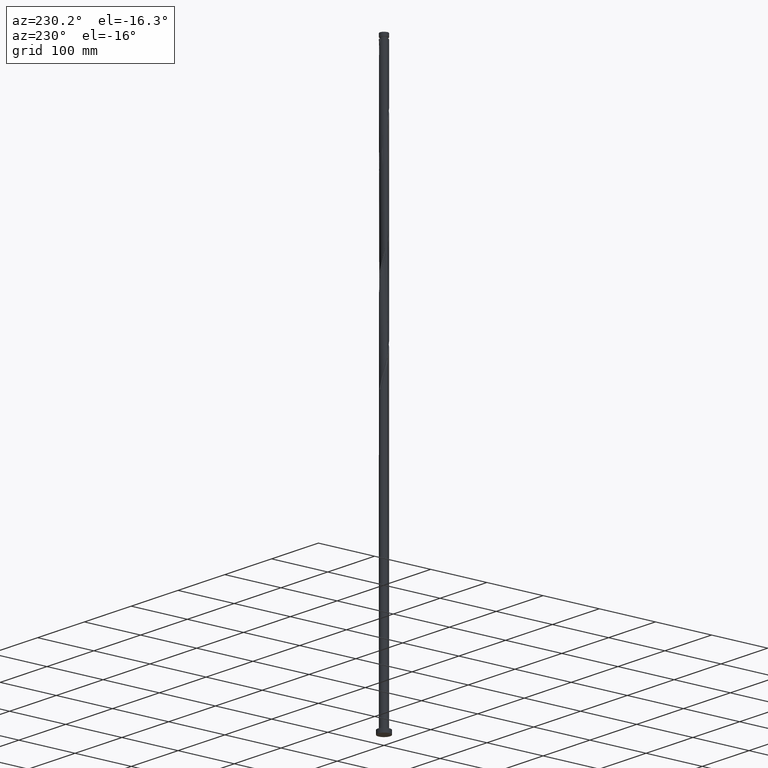
[diagram: clean part render]
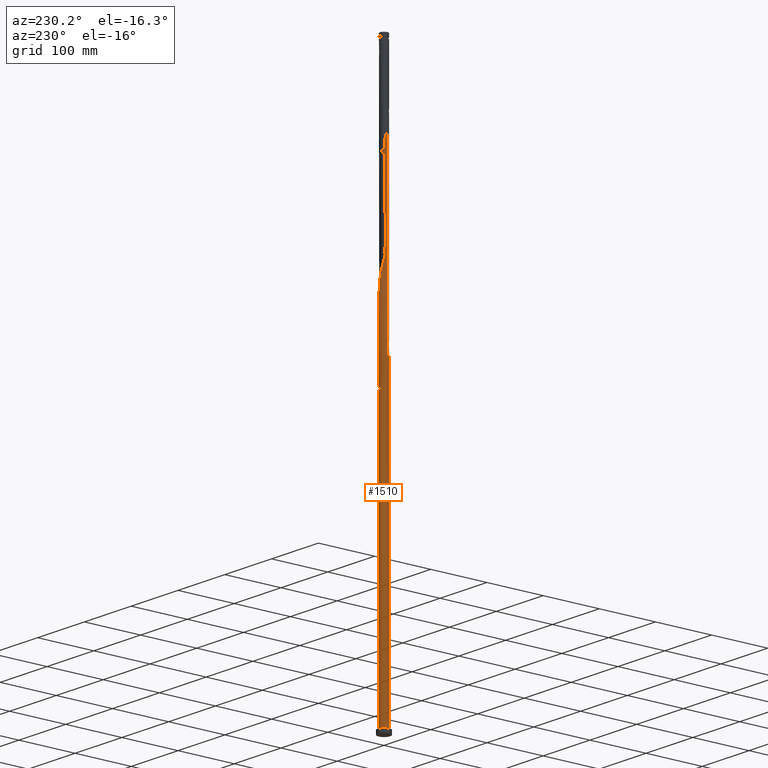
[diagram: same view with one face highlighted and labeled with its STEP entity id]
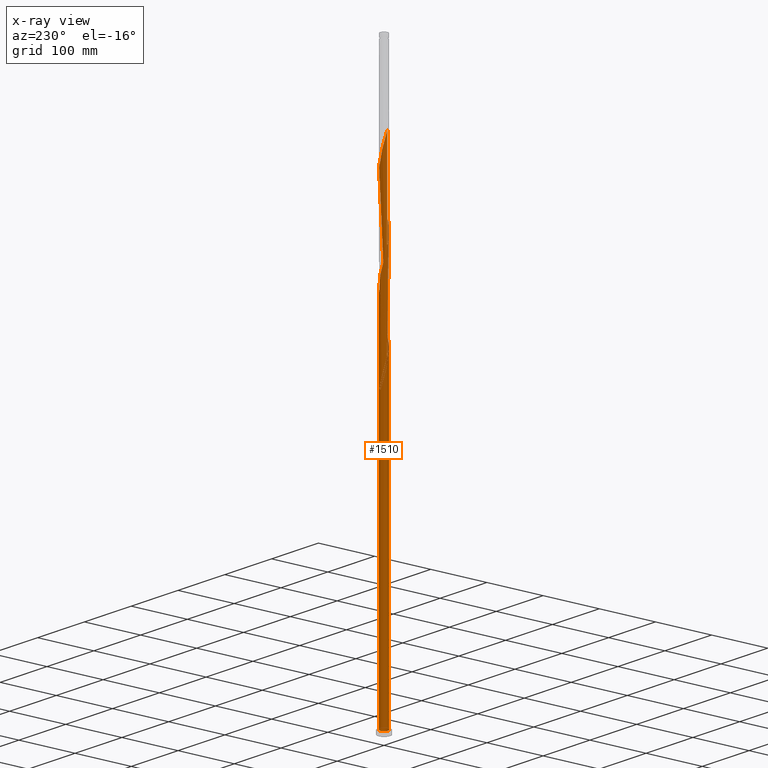
[diagram: x-ray of the same camera — body ghosted, the highlighted face saturated]
A machine part, auxiliary view. The second image highlights one B-rep face of the part: STEP entity #1510.
The next image is the same camera in x-ray: the body ghosted, the highlighted face saturated — about 0% of this face is hidden behind the body in this view.
In plain terms, the highlighted cylindrical surface (bore or boss wall) has radius 7 mm, axis along (-0, -0, -1).
Its self-contained STEP definition (entity closure, byte-faithful):
#15 = AXIS2_PLACEMENT_3D ( 'NONE', #1799, #1085, #2005 ) ;
#29 = ORIENTED_EDGE ( 'NONE', *, *, #803, .F. ) ;
#42 = CARTESIAN_POINT ( 'NONE',  ( 3.444661581381044169, -6.093792463627032419, 749.4754418615292479 ) ) ;
#53 = CARTESIAN_POINT ( 'NONE',  ( -5.835739828502652493, 3.865765209376793354, 678.6421085281959904 ) ) ;
#66 = CARTESIAN_POINT ( 'NONE',  ( -0.7950515814432402850, -6.954702939942493778, 732.8087751948629602 ) ) ;
#74 = DIRECTION ( 'NONE',  ( -0.000000000000000000, -0.000000000000000000, -1.000000000000000000 ) ) ;
#78 = CARTESIAN_POINT ( 'NONE',  ( -1.342398573274906193, -6.892131023469297624, 730.7254418615291343 ) ) ;
#81 = CARTESIAN_POINT ( 'NONE',  ( -2.965069713458600820, 6.364893209514908001, 497.3921085281959336 ) ) ;
#91 = CARTESIAN_POINT ( 'NONE',  ( -5.159153274858741867, 4.731082062965561441, 507.8087751948625623 ) ) ;
#106 = CARTESIAN_POINT ( 'NONE',  ( 2.404038248898769048, 6.597280051053632022, 643.2254418615292479 ) ) ;
#111 = CARTESIAN_POINT ( 'NONE',  ( -1.342398573274902196, 6.892131023469287854, 501.5587751948625623 ) ) ;
#120 = CARTESIAN_POINT ( 'NONE',  ( -2.404038248898770824, -6.597280051053632022, 559.8921085281961041 ) ) ;
#131 = CARTESIAN_POINT ( 'NONE',  ( 6.744705537261463490, -1.873218411086838620, 603.6421085281961041 ) ) ;
#136 = VERTEX_POINT ( 'NONE', #1682 ) ;
#144 = CARTESIAN_POINT ( 'NONE',  ( 6.093792463627032419, 3.444661581381044169, 624.4754418615292479 ) ) ;
#148 = DIRECTION ( 'NONE',  ( 1.000000000000000000, 0.000000000000000000, 0.000000000000000000 ) ) ;
#196 = CARTESIAN_POINT ( 'NONE',  ( -7.000000000000011546, -8.910909435268075030E-15, 527.4954969894147325 ) ) ;
#206 = CIRCLE ( 'NONE', #15, 7.000000000000000000 ) ;
#215 = EDGE_CURVE ( 'NONE', #136, #325, #206, .T. ) ;
#220 = CARTESIAN_POINT ( 'NONE',  ( -0.2477045896115740997, -7.017274856415688156, 734.8921085281959904 ) ) ;
#230 = CARTESIAN_POINT ( 'NONE',  ( 6.954702939942493778, -0.7950515814432402850, 774.4754418615292479 ) ) ;
#233 = CARTESIAN_POINT ( 'NONE',  ( -1.932876120766163330, 6.750369906602925241, 493.2254418615293616 ) ) ;
#240 = CIRCLE ( 'NONE', #2186, 7.000000000000000000 ) ;
#241 = CARTESIAN_POINT ( 'NONE',  ( 4.325047894464357334, 5.531497508341470137, 801.5587751948627329 ) ) ;
#252 = CARTESIAN_POINT ( 'NONE',  ( -4.325047894464358222, -5.531497508341469249, 718.2254418615293616 ) ) ;
#264 = CARTESIAN_POINT ( 'NONE',  ( 6.364893209514911554, 2.965069713458597267, 789.0587751948623918 ) ) ;
#272 = CARTESIAN_POINT ( 'NONE',  ( 4.325047894464357334, 5.531497508341470137, 634.8921085281959904 ) ) ;
#278 = CARTESIAN_POINT ( 'NONE',  ( -3.865765209376786249, 5.835739828502643611, 511.9754418615290774 ) ) ;
#283 = CARTESIAN_POINT ( 'NONE',  ( 2.905260386594000543, 6.368631099858730771, 641.1421085281959904 ) ) ;
#284 = CARTESIAN_POINT ( 'NONE',  ( -1.392982411949278410, 6.860000000000009202, 824.4754418615295890 ) ) ;
#295 = CARTESIAN_POINT ( 'NONE',  ( -2.965069713458600820, 6.364893209514908001, 830.7254418615292479 ) ) ;
#306 = CARTESIAN_POINT ( 'NONE',  ( -6.557631558058917953, -2.448972917112382408, 536.9754418615293616 ) ) ;
#311 = ORIENTED_EDGE ( 'NONE', *, *, #773, .F. ) ;
#317 = CARTESIAN_POINT ( 'NONE',  ( 6.860000000000009202, 1.392982411949278854, 616.1421085281961041 ) ) ;
#318 = CARTESIAN_POINT ( 'NONE',  ( -4.786809041376016260, 5.137116231466765548, 839.0587751948627329 ) ) ;
#322 = CARTESIAN_POINT ( 'NONE',  ( 0.8530887031323963754, 6.969630093397080728, 493.2254418615293616 ) ) ;
#325 = VERTEX_POINT ( 'NONE', #1844 ) ;
#331 = CARTESIAN_POINT ( 'NONE',  ( -0.8530887031323919345, 6.969630093397093162, 655.7254418615292479 ) ) ;
#342 = CARTESIAN_POINT ( 'NONE',  ( -6.999999999999999112, -8.657164945486632062E-15, 538.1220534003106195 ) ) ;
#365 = CARTESIAN_POINT ( 'NONE',  ( -6.859999999999999432, 1.392982411949279076, 532.8087751948627329 ) ) ;
#387 = EDGE_CURVE ( 'NONE', #1816, #1408, #979, .T. ) ;
#395 = CARTESIAN_POINT ( 'NONE',  ( -6.993452474906391991, -0.3026920567604114432, 695.3087751948625055 ) ) ;
#396 = ORIENTED_EDGE ( 'NONE', *, *, #667, .F. ) ;
#406 = CARTESIAN_POINT ( 'NONE',  ( -6.969630093397091386, -0.8530887031323962644, 697.3921085281961041 ) ) ;
#410 = CARTESIAN_POINT ( 'NONE',  ( -5.835739828502652493, 3.865765209376793354, 511.9754418615293048 ) ) ;
#421 = CARTESIAN_POINT ( 'NONE',  ( -6.750369906602926129, -1.932876120766162442, 701.5587751948625055 ) ) ;
#432 = CARTESIAN_POINT ( 'NONE',  ( -6.860000000000009202, -1.392982411949279520, 699.4754418615293616 ) ) ;
#441 = CARTESIAN_POINT ( 'NONE',  ( 0.8530887031323959313, -6.969630093397091386, 739.0587751948626192 ) ) ;
#445 = CARTESIAN_POINT ( 'NONE',  ( -5.137116231466755778, 4.786809041376008267, 518.2254418615292479 ) ) ;
#449 = CARTESIAN_POINT ( 'NONE',  ( 4.731082062965563217, 5.159153274858740090, 632.8087751948626192 ) ) ;
#452 = VECTOR ( 'NONE', #921, 1000.000000000000000 ) ;
#461 = CARTESIAN_POINT ( 'NONE',  ( -5.822691717739151507, -3.924253449303487518, 543.2254418615293616 ) ) ;
#473 = CARTESIAN_POINT ( 'NONE',  ( 5.159153274858740978, -4.731082062965561441, 591.1421085281958767 ) ) ;
#483 = CARTESIAN_POINT ( 'NONE',  ( 5.531497508341469249, -4.325047894464359111, 593.2254418615292479 ) ) ;
#492 = CARTESIAN_POINT ( 'NONE',  ( 1.392982411949279298, -6.860000000000009202, 574.4754418615292479 ) ) ;
#493 = CARTESIAN_POINT ( 'NONE',  ( 3.406482524289233371, 6.139982148663830408, 805.7254418615292479 ) ) ;
#497 = CARTESIAN_POINT ( 'NONE',  ( -0.2477045896115717960, 7.017274856415677498, 497.3921085281958767 ) ) ;
#504 = CARTESIAN_POINT ( 'NONE',  ( -4.786809041376016260, 5.137116231466765548, 672.3921085281958767 ) ) ;
#516 = CARTESIAN_POINT ( 'NONE',  ( -6.597280051053632022, 2.404038248898770824, 518.2254418615292479 ) ) ;
#517 = DIRECTION ( 'NONE',  ( 0.000000000000000000, 0.000000000000000000, 1.000000000000000000 ) ) ;
#522 = ORIENTED_EDGE ( 'NONE', *, *, #387, .T. ) ;
#540 = CARTESIAN_POINT ( 'NONE',  ( -7.000000000000011546, -8.910909435268075030E-15, 527.4954969894147325 ) ) ;
#564 = CARTESIAN_POINT ( 'NONE',  ( -5.531497508341469249, 4.325047894464358222, 676.5587751948625055 ) ) ;
#565 = VERTEX_POINT ( 'NONE', #2036 ) ;
#575 = CARTESIAN_POINT ( 'NONE',  ( 6.892131023469296736, -1.342398573274909968, 772.3921085281961041 ) ) ;
#587 = CARTESIAN_POINT ( 'NONE',  ( -6.744705537261463490, 1.873218411086837509, 686.9754418615293616 ) ) ;
#591 = CARTESIAN_POINT ( 'NONE',  ( -6.093792463627019096, 3.444661581381040172, 524.4754418615291343 ) ) ;
#602 = CARTESIAN_POINT ( 'NONE',  ( -7.017274856415688156, 0.2477045896115736556, 693.2254418615293616 ) ) ;
#613 = CARTESIAN_POINT ( 'NONE',  ( 6.750369906602925241, 1.932876120766165329, 784.8921085281957630 ) ) ;
#616 = CARTESIAN_POINT ( 'NONE',  ( -4.786809041376016260, 5.137116231466765548, 505.7254418615293616 ) ) ;
#621 = CARTESIAN_POINT ( 'NONE',  ( 5.479903974602959416, 4.355531245339751223, 628.6421085281959904 ) ) ;
#624 = CARTESIAN_POINT ( 'NONE',  ( -6.139982148663833073, 3.406482524289229374, 847.3921085281958767 ) ) ;
#632 = CARTESIAN_POINT ( 'NONE',  ( 7.017274856415689044, -0.2477045896115713242, 609.8921085281958767 ) ) ;
#636 = CARTESIAN_POINT ( 'NONE',  ( 3.865765209376795575, 5.835739828502651605, 803.6421085281961041 ) ) ;
#645 = CARTESIAN_POINT ( 'NONE',  ( -0.7950515814432402850, -6.954702939942493778, 566.1421085281958767 ) ) ;
#649 = ORIENTED_EDGE ( 'NONE', *, *, #387, .F. ) ;
#656 = CARTESIAN_POINT ( 'NONE',  ( -6.364893209514909778, -2.965069713458600820, 539.0587751948626192 ) ) ;
#657 = CARTESIAN_POINT ( 'NONE',  ( -3.924253449303489294, 5.822691717739151507, 834.8921085281961041 ) ) ;
#661 = CARTESIAN_POINT ( 'NONE',  ( 1.392982411949280852, 6.859999999999997655, 491.1421085281959336 ) ) ;
#667 = EDGE_CURVE ( 'NONE', #1816, #1256, #1084, .T. ) ;
#670 = CARTESIAN_POINT ( 'NONE',  ( 0.8530887031323959313, -6.969630093397091386, 572.3921085281961041 ) ) ;
#681 = CARTESIAN_POINT ( 'NONE',  ( -2.448972917112383296, 6.557631558058917953, 661.9754418615294753 ) ) ;
#696 = CARTESIAN_POINT ( 'NONE',  ( 0.000000000000000000, 0.000000000000000000, 7.000000000000000000 ) ) ;
#731 = CARTESIAN_POINT ( 'NONE',  ( -6.557631558058906407, 2.448972917112379744, 528.6421085281958767 ) ) ;
#737 = CARTESIAN_POINT ( 'NONE',  ( -1.392982411949278188, 6.860000000000009202, 491.1421085281959336 ) ) ;
#745 = CARTESIAN_POINT ( 'NONE',  ( 0.3026920567604110546, -6.993452474906390215, 736.9754418615293616 ) ) ;
#758 = CARTESIAN_POINT ( 'NONE',  ( 3.924253449303487518, -5.822691717739153283, 751.5587751948623918 ) ) ;
#770 = CARTESIAN_POINT ( 'NONE',  ( 6.557631558058917953, 2.448972917112381520, 786.9754418615294753 ) ) ;
#773 = EDGE_CURVE ( 'NONE', #136, #1816, #830, .T. ) ;
#782 = CARTESIAN_POINT ( 'NONE',  ( 6.597280051053632022, -2.404038248898768160, 768.2254418615292479 ) ) ;
#786 = CARTESIAN_POINT ( 'NONE',  ( -5.479903974602947869, 4.355531245339746782, 520.3087751948626192 ) ) ;
#803 = EDGE_CURVE ( 'NONE', #1044, #325, #923, .T. ) ;
#807 = CARTESIAN_POINT ( 'NONE',  ( -5.835739828502652493, 3.865765209376793354, 845.3087751948627329 ) ) ;
#815 = CARTESIAN_POINT ( 'NONE',  ( 2.965069713458600376, -6.364893209514909778, 580.7254418615292479 ) ) ;
#824 = CARTESIAN_POINT ( 'NONE',  ( 1.873218411086839286, 6.744705537261463490, 645.3087751948626192 ) ) ;
#825 = CARTESIAN_POINT ( 'NONE',  ( 0.7950515814432411732, 6.954702939942493778, 816.1421085281959904 ) ) ;
#830 =( BOUNDED_CURVE ( )  B_SPLINE_CURVE ( 2, ( #737, #233, #1695, #81, #1882, #1483, #2239, #616, #91, #2250, #410, #1129, #1662, #516, #2004, #1966, #1582, #1798, #540 ),
 .UNSPECIFIED., .F., .T. ) 
 B_SPLINE_CURVE_WITH_KNOTS ( ( 3, 2, 2, 2, 2, 2, 2, 2, 2, 3 ),
 ( 0.000000000000000000, 0.006249999999999976928, 0.01249999999999995386, 0.01875000000000004441, 0.02500000000000002220, 0.03125000000000000000, 0.03749999999999997780, 0.04374999999999995559, 0.05000000000000004441, 0.05452835374107325300 ),
 .UNSPECIFIED. ) 
 CURVE ( )  GEOMETRIC_REPRESENTATION_ITEM ( )  RATIONAL_B_SPLINE_CURVE ( ( 0.9090909090909780055, 0.9062884852120033363, 0.9090909090909780055, 0.9062884852120033363, 0.9090909090909780055, 0.9062884852120033363, 0.9090909090909780055, 0.9062884852120033363, 0.9090909090909780055, 0.9062884852120033363, 0.9090909090909780055, 0.9062884852120033363, 0.9090909090909780055, 0.9062884852120033363, 0.9090909090909780055, 0.9062884852120033363, 0.9090909090909780055, 0.9070604504259495160, 0.9079722749903214041 ) ) 
 REPRESENTATION_ITEM ( '' )  );
#833 = CYLINDRICAL_SURFACE ( 'NONE', #1170, 7.000000000000000000 ) ;
#840 = CARTESIAN_POINT ( 'NONE',  ( -0.2477045896115740997, -7.017274856415688156, 568.2254418615293616 ) ) ;
#852 = CARTESIAN_POINT ( 'NONE',  ( 6.954702939942493778, -0.7950515814432402850, 607.8087751948626192 ) ) ;
#853 = CARTESIAN_POINT ( 'NONE',  ( 1.873218411086839286, 6.744705537261463490, 811.9754418615292479 ) ) ;
#863 = CARTESIAN_POINT ( 'NONE',  ( 0.2477045896115715462, 7.017274856415689044, 651.5587751948628465 ) ) ;
#888 = CARTESIAN_POINT ( 'NONE',  ( -6.993452474906378669, 0.3026920567604127754, 536.9754418615294753 ) ) ;
#903 = ORIENTED_EDGE ( 'NONE', *, *, #1887, .T. ) ;
#910 = CARTESIAN_POINT ( 'NONE',  ( -6.750369906602915471, 1.932876120766161554, 530.7254418615292479 ) ) ;
#921 = DIRECTION ( 'NONE',  ( -0.000000000000000000, -0.000000000000000000, -1.000000000000000000 ) ) ;
#923 =( BOUNDED_CURVE ( )  B_SPLINE_CURVE ( 2, ( #342, #2335, #888, #1990, #365, #910, #731, #1873, #591, #1348, #786, #445, #1885, #1898, #278, #996, #1056, #1005, #2303, #111, #1371, #497, #1947, #322, #661 ),
 .UNSPECIFIED., .F., .T. ) 
 B_SPLINE_CURVE_WITH_KNOTS ( ( 3, 2, 2, 2, 2, 2, 2, 2, 2, 2, 2, 2, 3 ),
 ( 0.9295283537410735653, 0.9312500000000000222, 0.9375000000000000000, 0.9437499999999999778, 0.9499999999999999556, 0.9562500000000000444, 0.9625000000000000222, 0.9687500000000000000, 0.9749999999999999778, 0.9812499999999999556, 0.9875000000000000444, 0.9937500000000000222, 1.000000000000000000 ),
 .UNSPECIFIED. ) 
 CURVE ( )  GEOMETRIC_REPRESENTATION_ITEM ( )  RATIONAL_B_SPLINE_CURVE ( ( 0.9079722749903154089, 0.9083189438770258306, 0.9090909090909720103, 0.9062884852119970081, 0.9090909090909720103, 0.9062884852119970081, 0.9090909090909720103, 0.9062884852119970081, 0.9090909090909720103, 0.9062884852119970081, 0.9090909090909720103, 0.9062884852119970081, 0.9090909090909720103, 0.9062884852119970081, 0.9090909090909720103, 0.9062884852119970081, 0.9090909090909720103, 0.9062884852119970081, 0.9090909090909720103, 0.9062884852119970081, 0.9090909090909720103, 0.9062884852119970081, 0.9090909090909720103, 0.9062884852119970081, 0.9090909090909720103 ) ) 
 REPRESENTATION_ITEM ( '' )  );
#936 = CARTESIAN_POINT ( 'NONE',  ( -6.364893209514909778, -2.965069713458600820, 705.7254418615293616 ) ) ;
#949 = CARTESIAN_POINT ( 'NONE',  ( -6.139982148663833073, 3.406482524289229374, 680.7254418615293616 ) ) ;
#959 = CARTESIAN_POINT ( 'NONE',  ( 4.786809041376015372, -5.137116231466765548, 755.7254418615293616 ) ) ;
#979 = LINE ( 'NONE', #1678, #1366 ) ;
#981 = CARTESIAN_POINT ( 'NONE',  ( -6.557631558058917953, -2.448972917112382408, 703.6421085281962178 ) ) ;
#989 = CARTESIAN_POINT ( 'NONE',  ( 3.865765209376795575, 5.835739828502651605, 636.9754418615293616 ) ) ;
#992 = CARTESIAN_POINT ( 'NONE',  ( -3.444661581381044613, 6.093792463627030642, 832.8087751948627329 ) ) ;
#996 = CARTESIAN_POINT ( 'NONE',  ( -3.406482524289222269, 6.139982148663825079, 509.8921085281959904 ) ) ;
#1001 = CARTESIAN_POINT ( 'NONE',  ( 0.3026920567604110546, -6.993452474906390215, 570.3087751948625055 ) ) ;
#1005 = CARTESIAN_POINT ( 'NONE',  ( -2.404038248898764607, 6.597280051053624028, 505.7254418615293616 ) ) ;
#1012 = CARTESIAN_POINT ( 'NONE',  ( -7.000000000000011546, -8.910909435268075030E-15, 527.4954969894147325 ) ) ;
#1014 = CARTESIAN_POINT ( 'NONE',  ( -6.597280051053632022, 2.404038248898770824, 851.5587751948626192 ) ) ;
#1025 = CARTESIAN_POINT ( 'NONE',  ( 6.368631099858730771, -2.905260386594000099, 599.4754418615293616 ) ) ;
#1038 = CARTESIAN_POINT ( 'NONE',  ( 6.750369906602925241, 1.932876120766165329, 618.2254418615292479 ) ) ;
#1039 = CARTESIAN_POINT ( 'NONE',  ( -5.531497508341469249, 4.325047894464358222, 843.2254418615291343 ) ) ;
#1044 = VERTEX_POINT ( 'NONE', #2003 ) ;
#1051 = CARTESIAN_POINT ( 'NONE',  ( -2.965069713458600820, 6.364893209514908001, 664.0587751948625055 ) ) ;
#1056 = CARTESIAN_POINT ( 'NONE',  ( -2.905260386593994326, 6.368631099858721889, 507.8087751948625623 ) ) ;
#1078 = ORIENTED_EDGE ( 'NONE', *, *, #215, .T. ) ;
#1084 =( BOUNDED_CURVE ( )  B_SPLINE_CURVE ( 2, ( #1012, #1929, #1219, #1196, #2287, #1942, #306, #656, #1737, #461, #2069, #2090, #2112, #1172, #1726, #2080, #1891, #120, #1713, #2099, #645, #840, #1001, #670, #492, #1210, #1915, #815, #1554, #1531, #1748, #2255, #473, #483, #1390, #2276, #1025, #1376, #131, #2246, #852, #632, #1567, #1353, #317, #1038, #1342, #1759, #144, #1523, #621, #1542, #449, #272, #989, #1904, #283, #106, #824, #2265, #1364, #863, #1581, #331, #1772, #1954, #681, #1051, #2299, #1403, #2123, #504, #1231, #564, #53, #949, #2061, #1115, #587, #1287, #2017, #602, #395, #406, #432, #421, #981, #936, #2214, #1681, #2225, #1161, #1847, #252, #1869, #1311, #2190, #1335, #1837, #78, #66, #220, #745, #441, #1658, #2050, #1480, #1704, #42, #758, #1469, #959, #1126, #1322, #1299, #2201, #1670, #782, #1515, #575, #230, #2236, #1879, #1138, #1504, #613, #770, #264, #1493, #2027, #2040, #1859, #1150, #241, #636, #493, #1186, #1906, #853, #1916, #825, #1367, #1220, #2071, #284, #2082, #1175, #295, #992, #657, #1543, #318, #1715, #1039, #807, #624, #1197, #1014, #1894, #2266, #1534, #2257, #1555 ),
 .UNSPECIFIED., .F., .T. ) 
 B_SPLINE_CURVE_WITH_KNOTS ( ( 3, 2, 2, 2, 2, 2, 2, 2, 2, 2, 2, 2, 2, 2, 2, 2, 2, 2, 2, 2, 2, 2, 2, 2, 2, 2, 2, 2, 2, 2, 2, 2, 2, 2, 2, 2, 2, 2, 2, 2, 2, 2, 2, 2, 2, 2, 2, 2, 2, 2, 2, 2, 2, 2, 2, 2, 2, 2, 2, 2, 2, 2, 2, 2, 2, 2, 2, 2, 2, 2, 2, 2, 2, 2, 2, 2, 2, 2, 2, 2, 2, 3 ),
 ( 0.05452835374107325300, 0.05625000000000002220, 0.06250000000000000000, 0.06874999999999997780, 0.07499999999999995559, 0.08125000000000004441, 0.08750000000000002220, 0.09375000000000000000, 0.09999999999999997780, 0.1062499999999999556, 0.1125000000000000444, 0.1187500000000000222, 0.1250000000000000000, 0.1312499999999999778, 0.1374999999999999556, 0.1437500000000000444, 0.1500000000000000222, 0.1562500000000000000, 0.1624999999999999778, 0.1687499999999999556, 0.1750000000000000444, 0.1812500000000000222, 0.1875000000000000000, 0.1937499999999999778, 0.1999999999999999556, 0.2062500000000000444, 0.2125000000000000222, 0.2187500000000000000, 0.2249999999999999778, 0.2312499999999999556, 0.2375000000000000444, 0.2437500000000000222, 0.2500000000000000000, 0.2562499999999999778, 0.2624999999999999556, 0.2687500000000000444, 0.2750000000000000222, 0.2812500000000000000, 0.2874999999999999778, 0.2937499999999999556, 0.3000000000000000444, 0.3062500000000000222, 0.3125000000000000000, 0.3187499999999999778, 0.3249999999999999556, 0.3312500000000000444, 0.3375000000000000222, 0.3437500000000000000, 0.3499999999999999778, 0.3562499999999999556, 0.3625000000000000444, 0.3687500000000000222, 0.3750000000000000000, 0.3812499999999999778, 0.3874999999999999556, 0.3937500000000000444, 0.4000000000000000222, 0.4062500000000000000, 0.4124999999999999778, 0.4187499999999999556, 0.4250000000000000444, 0.4312500000000000222, 0.4375000000000000000, 0.4437499999999999778, 0.4499999999999999556, 0.4562500000000000444, 0.4625000000000000222, 0.4687500000000000000, 0.4749999999999999778, 0.4812499999999999556, 0.4875000000000000444, 0.4937500000000000222, 0.5000000000000000000, 0.5062499999999999778, 0.5124999999999999556, 0.5187500000000000444, 0.5250000000000000222, 0.5312500000000000000, 0.5374999999999999778, 0.5437499999999999556, 0.5500000000000000444, 0.5545283537410735653 ),
 .UNSPECIFIED. ) 
 CURVE ( )  GEOMETRIC_REPRESENTATION_ITEM ( )  RATIONAL_B_SPLINE_CURVE ( ( 0.9079722749903214041, 0.9083189438770318258, 0.9090909090909780055, 0.9062884852120033363, 0.9090909090909780055, 0.9062884852120033363, 0.9090909090909780055, 0.9062884852120033363, 0.9090909090909780055, 0.9062884852120033363, 0.9090909090909780055, 0.9062884852120033363, 0.9090909090909780055, 0.9062884852120033363, 0.9090909090909780055, 0.9062884852120033363, 0.9090909090909780055, 0.9062884852120033363, 0.9090909090909780055, 0.9062884852120033363, 0.9090909090909780055, 0.9062884852120033363, 0.9090909090909780055, 0.9062884852120033363, 0.9090909090909780055, 0.9062884852120033363, 0.9090909090909780055, 0.9062884852120033363, 0.9090909090909780055, 0.9062884852120033363, 0.9090909090909780055, 0.9062884852120033363, 0.9090909090909780055, 0.9062884852120033363, 0.9090909090909780055, 0.9062884852120033363, 0.9090909090909780055, 0.9062884852120033363, 0.9090909090909780055, 0.9062884852120033363, 0.9090909090909780055, 0.9062884852120033363, 0.9090909090909780055, 0.9062884852120033363, 0.9090909090909780055, 0.9062884852120033363, 0.9090909090909780055, 0.9062884852120033363, 0.9090909090909780055, 0.9062884852120033363, 0.9090909090909780055, 0.9062884852120033363, 0.9090909090909780055, 0.9062884852120033363, 0.9090909090909780055, 0.9062884852120033363, 0.9090909090909780055, 0.9062884852120033363, 0.9090909090909780055, 0.9062884852120033363, 0.9090909090909780055, 0.9062884852120033363, 0.9090909090909780055, 0.9062884852120033363, 0.9090909090909780055, 0.9062884852120033363, 0.9090909090909780055, 0.9062884852120033363, 0.9090909090909780055, 0.9062884852120033363, 0.9090909090909780055, 0.9062884852120033363, 0.9090909090909780055, 0.9062884852120033363, 0.9090909090909780055, 0.9062884852120033363, 0.9090909090909780055, 0.9062884852120033363, 0.9090909090909780055, 0.9062884852120033363, 0.9090909090909780055, 0.9062884852120033363, 0.9090909090909780055, 0.9062884852120033363, 0.9090909090909780055, 0.9062884852120033363, 0.9090909090909780055, 0.9062884852120033363, 0.9090909090909780055, 0.9062884852120033363, 0.9090909090909780055, 0.9062884852120033363, 0.9090909090909780055, 0.9062884852120033363, 0.9090909090909780055, 0.9062884852120033363, 0.9090909090909780055, 0.9062884852120033363, 0.9090909090909780055, 0.9062884852120033363, 0.9090909090909780055, 0.9062884852120033363, 0.9090909090909780055, 0.9062884852120033363, 0.9090909090909780055, 0.9062884852120033363, 0.9090909090909780055, 0.9062884852120033363, 0.9090909090909780055, 0.9062884852120033363, 0.9090909090909780055, 0.9062884852120033363, 0.9090909090909780055, 0.9062884852120033363, 0.9090909090909780055, 0.9062884852120033363, 0.9090909090909780055, 0.9062884852120033363, 0.9090909090909780055, 0.9062884852120033363, 0.9090909090909780055, 0.9062884852120033363, 0.9090909090909780055, 0.9062884852120033363, 0.9090909090909780055, 0.9062884852120033363, 0.9090909090909780055, 0.9062884852120033363, 0.9090909090909780055, 0.9062884852120033363, 0.9090909090909780055, 0.9062884852120033363, 0.9090909090909780055, 0.9062884852120033363, 0.9090909090909780055, 0.9062884852120033363, 0.9090909090909780055, 0.9062884852120033363, 0.9090909090909780055, 0.9062884852120033363, 0.9090909090909780055, 0.9062884852120033363, 0.9090909090909780055, 0.9062884852120033363, 0.9090909090909780055, 0.9062884852120033363, 0.9090909090909780055, 0.9062884852120033363, 0.9090909090909780055, 0.9062884852120033363, 0.9090909090909780055, 0.9062884852120033363, 0.9090909090909780055, 0.9062884852120033363, 0.9090909090909780055, 0.9062884852120033363, 0.9090909090909780055, 0.9062884852120033363, 0.9090909090909780055, 0.9062884852120033363, 0.9090909090909780055, 0.9070604504259494050, 0.9079722749903216261 ) ) 
 REPRESENTATION_ITEM ( '' )  );
#1085 = DIRECTION ( 'NONE',  ( 0.000000000000000000, -0.000000000000000000, -1.000000000000000000 ) ) ;
#1101 = DIRECTION ( 'NONE',  ( 1.000000000000000000, 0.000000000000000000, 0.000000000000000000 ) ) ;
#1115 = CARTESIAN_POINT ( 'NONE',  ( -6.597280051053632022, 2.404038248898770824, 684.8921085281956493 ) ) ;
#1126 = CARTESIAN_POINT ( 'NONE',  ( 5.159153274858740978, -4.731082062965561441, 757.8087751948626192 ) ) ;
#1129 = CARTESIAN_POINT ( 'NONE',  ( -6.139982148663833073, 3.406482524289229374, 514.0587751948628465 ) ) ;
#1138 = CARTESIAN_POINT ( 'NONE',  ( 6.969630093397093162, 0.8530887031323923786, 780.7254418615293616 ) ) ;
#1150 = CARTESIAN_POINT ( 'NONE',  ( 4.731082062965563217, 5.159153274858740090, 799.4754418615293616 ) ) ;
#1161 = CARTESIAN_POINT ( 'NONE',  ( -5.137116231466765548, -4.786809041376016260, 714.0587751948626192 ) ) ;
#1170 = AXIS2_PLACEMENT_3D ( 'NONE', #1571, #1776, #1958 ) ;
#1172 = CARTESIAN_POINT ( 'NONE',  ( -4.325047894464358222, -5.531497508341469249, 551.5587751948626192 ) ) ;
#1175 = CARTESIAN_POINT ( 'NONE',  ( -2.448972917112383296, 6.557631558058917953, 828.6421085281961041 ) ) ;
#1186 = CARTESIAN_POINT ( 'NONE',  ( 2.905260386594000543, 6.368631099858730771, 807.8087751948628465 ) ) ;
#1196 = CARTESIAN_POINT ( 'NONE',  ( -6.969630093397091386, -0.8530887031323962644, 530.7254418615292479 ) ) ;
#1197 = CARTESIAN_POINT ( 'NONE',  ( -6.368631099858731659, 2.905260386594000099, 849.4754418615294753 ) ) ;
#1210 = CARTESIAN_POINT ( 'NONE',  ( 1.932876120766161998, -6.750369906602926129, 576.5587751948626192 ) ) ;
#1219 = CARTESIAN_POINT ( 'NONE',  ( -6.993452474906391991, -0.3026920567604114432, 528.6421085281962178 ) ) ;
#1220 = CARTESIAN_POINT ( 'NONE',  ( -0.3026920567604101664, 6.993452474906391991, 820.3087751948627329 ) ) ;
#1231 = CARTESIAN_POINT ( 'NONE',  ( -5.159153274858741867, 4.731082062965561441, 674.4754418615292479 ) ) ;
#1256 = VERTEX_POINT ( 'NONE', #1620 ) ;
#1287 = CARTESIAN_POINT ( 'NONE',  ( -6.892131023469297624, 1.342398573274905527, 689.0587751948627329 ) ) ;
#1299 = CARTESIAN_POINT ( 'NONE',  ( 5.835739828502651605, -3.865765209376794687, 761.9754418615294753 ) ) ;
#1311 = CARTESIAN_POINT ( 'NONE',  ( -3.406482524289230263, -6.139982148663833073, 722.3921085281957630 ) ) ;
#1322 = CARTESIAN_POINT ( 'NONE',  ( 5.531497508341469249, -4.325047894464359111, 759.8921085281959904 ) ) ;
#1335 = CARTESIAN_POINT ( 'NONE',  ( -2.404038248898770824, -6.597280051053632022, 726.5587751948626192 ) ) ;
#1342 = CARTESIAN_POINT ( 'NONE',  ( 6.557631558058917953, 2.448972917112381520, 620.3087751948627329 ) ) ;
#1348 = CARTESIAN_POINT ( 'NONE',  ( -5.822691717739142625, 3.924253449303483077, 522.3921085281959904 ) ) ;
#1353 = CARTESIAN_POINT ( 'NONE',  ( 6.969630093397093162, 0.8530887031323923786, 614.0587751948626192 ) ) ;
#1364 = CARTESIAN_POINT ( 'NONE',  ( 0.7950515814432411732, 6.954702939942493778, 649.4754418615293616 ) ) ;
#1366 = VECTOR ( 'NONE', #74, 1000.000000000000000 ) ;
#1367 = CARTESIAN_POINT ( 'NONE',  ( 0.2477045896115715462, 7.017274856415689044, 818.2254418615294753 ) ) ;
#1371 = CARTESIAN_POINT ( 'NONE',  ( -0.7950515814432369543, 6.954702939942482232, 499.4754418615293048 ) ) ;
#1376 = CARTESIAN_POINT ( 'NONE',  ( 6.597280051053632022, -2.404038248898768160, 601.5587751948625055 ) ) ;
#1390 = CARTESIAN_POINT ( 'NONE',  ( 5.835739828502651605, -3.865765209376794687, 595.3087751948628465 ) ) ;
#1403 = CARTESIAN_POINT ( 'NONE',  ( -3.924253449303489294, 5.822691717739151507, 668.2254418615291343 ) ) ;
#1408 = VERTEX_POINT ( 'NONE', #2124 ) ;
#1426 = CARTESIAN_POINT ( 'NONE',  ( -7.000000000000000000, 0.000000000000000000, 1000.000000000000000 ) ) ;
#1430 = AXIS2_PLACEMENT_3D ( 'NONE', #1470, #2028, #1101 ) ;
#1465 = EDGE_CURVE ( 'NONE', #565, #1408, #240, .T. ) ;
#1469 = CARTESIAN_POINT ( 'NONE',  ( 4.355531245339751223, -5.479903974602959416, 753.6421085281959904 ) ) ;
#1470 = CARTESIAN_POINT ( 'NONE',  ( 0.000000000000000000, 0.000000000000000000, 7.000000000000000000 ) ) ;
#1480 = CARTESIAN_POINT ( 'NONE',  ( 2.448972917112381964, -6.557631558058917953, 745.3087751948626192 ) ) ;
#1483 = CARTESIAN_POINT ( 'NONE',  ( -3.924253449303489294, 5.822691717739151507, 501.5587751948626760 ) ) ;
#1493 = CARTESIAN_POINT ( 'NONE',  ( 6.093792463627032419, 3.444661581381044169, 791.1421085281961041 ) ) ;
#1504 = CARTESIAN_POINT ( 'NONE',  ( 6.860000000000009202, 1.392982411949278854, 782.8087751948626192 ) ) ;
#1510 = ADVANCED_FACE ( 'NONE', ( #1559 ), #833, .T. ) ;
#1515 = CARTESIAN_POINT ( 'NONE',  ( 6.744705537261463490, -1.873218411086838620, 770.3087751948626192 ) ) ;
#1523 = CARTESIAN_POINT ( 'NONE',  ( 5.822691717739150619, 3.924253449303489294, 626.5587751948626192 ) ) ;
#1531 = CARTESIAN_POINT ( 'NONE',  ( 3.924253449303487518, -5.822691717739153283, 584.8921085281959904 ) ) ;
#1534 = CARTESIAN_POINT ( 'NONE',  ( -6.954702939942493778, 0.7950515814432399520, 857.8087751948628465 ) ) ;
#1542 = CARTESIAN_POINT ( 'NONE',  ( 5.137116231466768212, 4.786809041376013596, 630.7254418615293616 ) ) ;
#1543 = CARTESIAN_POINT ( 'NONE',  ( -4.355531245339752111, 5.479903974602959416, 836.9754418615293616 ) ) ;
#1554 = CARTESIAN_POINT ( 'NONE',  ( 3.444661581381044169, -6.093792463627032419, 582.8087751948626192 ) ) ;
#1555 = CARTESIAN_POINT ( 'NONE',  ( -7.000000000000012434, -1.820989867843727658E-15, 860.8288303227481038 ) ) ;
#1559 = FACE_OUTER_BOUND ( 'NONE', #2041, .T. ) ;
#1567 = CARTESIAN_POINT ( 'NONE',  ( 6.993452474906391991, 0.3026920567604106105, 611.9754418615293616 ) ) ;
#1571 = CARTESIAN_POINT ( 'NONE',  ( 0.000000000000000000, 0.000000000000000000, 1000.000000000000000 ) ) ;
#1581 = CARTESIAN_POINT ( 'NONE',  ( -0.3026920567604101664, 6.993452474906391991, 653.6421085281961041 ) ) ;
#1582 = CARTESIAN_POINT ( 'NONE',  ( -6.954702939942493778, 0.7950515814432399520, 524.4754418615293616 ) ) ;
#1620 = CARTESIAN_POINT ( 'NONE',  ( -7.000000000000012434, -1.820989867843727658E-15, 860.8288303227481038 ) ) ;
#1653 = EDGE_CURVE ( 'NONE', #1256, #1044, #1725, .T. ) ;
#1658 = CARTESIAN_POINT ( 'NONE',  ( 1.392982411949279298, -6.860000000000009202, 741.1421085281959904 ) ) ;
#1662 = CARTESIAN_POINT ( 'NONE',  ( -6.368631099858731659, 2.905260386594000099, 516.1421085281961041 ) ) ;
#1670 = CARTESIAN_POINT ( 'NONE',  ( 6.368631099858730771, -2.905260386594000099, 766.1421085281958767 ) ) ;
#1678 = CARTESIAN_POINT ( 'NONE',  ( -7.000000000000000000, 0.000000000000000000, 1000.000000000000000 ) ) ;
#1681 = CARTESIAN_POINT ( 'NONE',  ( -5.822691717739151507, -3.924253449303487518, 709.8921085281961041 ) ) ;
#1682 = CARTESIAN_POINT ( 'NONE',  ( -1.392982411949278188, 6.860000000000009202, 491.1421085281959336 ) ) ;
#1695 = CARTESIAN_POINT ( 'NONE',  ( -2.448972917112383296, 6.557631558058917953, 495.3087751948627329 ) ) ;
#1704 = CARTESIAN_POINT ( 'NONE',  ( 2.965069713458600376, -6.364893209514909778, 747.3921085281959904 ) ) ;
#1713 = CARTESIAN_POINT ( 'NONE',  ( -1.873218411086838175, -6.744705537261463490, 561.9754418615292479 ) ) ;
#1715 = CARTESIAN_POINT ( 'NONE',  ( -5.159153274858741867, 4.731082062965561441, 841.1421085281961041 ) ) ;
#1725 = LINE ( 'NONE', #1426, #452 ) ;
#1726 = CARTESIAN_POINT ( 'NONE',  ( -3.865765209376794687, -5.835739828502651605, 553.6421085281959904 ) ) ;
#1737 = CARTESIAN_POINT ( 'NONE',  ( -6.093792463627032419, -3.444661581381044613, 541.1421085281961041 ) ) ;
#1748 = CARTESIAN_POINT ( 'NONE',  ( 4.355531245339751223, -5.479903974602959416, 586.9754418615293616 ) ) ;
#1759 = CARTESIAN_POINT ( 'NONE',  ( 6.364893209514911554, 2.965069713458597267, 622.3921085281958767 ) ) ;
#1772 = CARTESIAN_POINT ( 'NONE',  ( -1.392982411949278410, 6.860000000000009202, 657.8087751948627329 ) ) ;
#1776 = DIRECTION ( 'NONE',  ( -0.000000000000000000, -0.000000000000000000, -1.000000000000000000 ) ) ;
#1777 = ORIENTED_EDGE ( 'NONE', *, *, #1653, .F. ) ;
#1798 = CARTESIAN_POINT ( 'NONE',  ( -7.000000000000008882, 0.3988161621250393418, 525.9836084710698287 ) ) ;
#1799 = CARTESIAN_POINT ( 'NONE',  ( 0.000000000000000000, 0.000000000000000000, 491.1421085281959336 ) ) ;
#1816 = VERTEX_POINT ( 'NONE', #196 ) ;
#1837 = CARTESIAN_POINT ( 'NONE',  ( -1.873218411086838175, -6.744705537261463490, 728.6421085281959904 ) ) ;
#1844 = CARTESIAN_POINT ( 'NONE',  ( 1.392982411949280852, 6.859999999999997655, 491.1421085281959336 ) ) ;
#1847 = CARTESIAN_POINT ( 'NONE',  ( -4.731082062965561441, -5.159153274858740978, 716.1421085281959904 ) ) ;
#1859 = CARTESIAN_POINT ( 'NONE',  ( 5.137116231466768212, 4.786809041376013596, 797.3921085281958767 ) ) ;
#1869 = CARTESIAN_POINT ( 'NONE',  ( -3.865765209376794687, -5.835739828502651605, 720.3087751948629602 ) ) ;
#1873 = CARTESIAN_POINT ( 'NONE',  ( -6.364893209514898231, 2.965069713458598599, 526.5587751948627329 ) ) ;
#1879 = CARTESIAN_POINT ( 'NONE',  ( 6.993452474906391991, 0.3026920567604106105, 778.6421085281958767 ) ) ;
#1882 = CARTESIAN_POINT ( 'NONE',  ( -3.444661581381044613, 6.093792463627030642, 499.4754418615293048 ) ) ;
#1885 = CARTESIAN_POINT ( 'NONE',  ( -4.731082062965552559, 5.159153274858735649, 516.1421085281961041 ) ) ;
#1887 = EDGE_CURVE ( 'NONE', #1408, #565, #2333, .T. ) ;
#1891 = CARTESIAN_POINT ( 'NONE',  ( -2.905260386594000099, -6.368631099858730771, 557.8087751948627329 ) ) ;
#1894 = CARTESIAN_POINT ( 'NONE',  ( -6.744705537261463490, 1.873218411086837509, 853.6421085281958767 ) ) ;
#1898 = CARTESIAN_POINT ( 'NONE',  ( -4.325047894464350229, 5.531497508341461256, 514.0587751948626192 ) ) ;
#1904 = CARTESIAN_POINT ( 'NONE',  ( 3.406482524289233371, 6.139982148663830408, 639.0587751948625055 ) ) ;
#1906 = CARTESIAN_POINT ( 'NONE',  ( 2.404038248898769048, 6.597280051053632022, 809.8921085281957630 ) ) ;
#1915 = CARTESIAN_POINT ( 'NONE',  ( 2.448972917112381964, -6.557631558058917953, 578.6421085281961041 ) ) ;
#1916 = CARTESIAN_POINT ( 'NONE',  ( 1.342398573274909968, 6.892131023469296736, 814.0587751948626192 ) ) ;
#1929 = CARTESIAN_POINT ( 'NONE',  ( -7.000000000000012434, -0.1514168430644468599, 528.0695092994811830 ) ) ;
#1942 = CARTESIAN_POINT ( 'NONE',  ( -6.750369906602926129, -1.932876120766162442, 534.8921085281958767 ) ) ;
#1947 = CARTESIAN_POINT ( 'NONE',  ( 0.3026920567604124424, 6.993452474906378669, 495.3087751948626760 ) ) ;
#1954 = CARTESIAN_POINT ( 'NONE',  ( -1.932876120766163330, 6.750369906602925241, 659.8921085281958767 ) ) ;
#1958 = DIRECTION ( 'NONE',  ( -1.000000000000000000, 0.000000000000000000, 0.000000000000000000 ) ) ;
#1966 = CARTESIAN_POINT ( 'NONE',  ( -6.892131023469297624, 1.342398573274905527, 522.3921085281961041 ) ) ;
#1990 = CARTESIAN_POINT ( 'NONE',  ( -6.969630093397078952, 0.8530887031323967085, 534.8921085281958767 ) ) ;
#2003 = CARTESIAN_POINT ( 'NONE',  ( -7.000000000000000000, -8.657164945486632062E-15, 538.1220534003106195 ) ) ;
#2004 = CARTESIAN_POINT ( 'NONE',  ( -6.744705537261463490, 1.873218411086837509, 520.3087751948626192 ) ) ;
#2005 = DIRECTION ( 'NONE',  ( -1.000000000000000000, 0.000000000000000000, 0.000000000000000000 ) ) ;
#2017 = CARTESIAN_POINT ( 'NONE',  ( -6.954702939942493778, 0.7950515814432399520, 691.1421085281958767 ) ) ;
#2027 = CARTESIAN_POINT ( 'NONE',  ( 5.822691717739150619, 3.924253449303489294, 793.2254418615292479 ) ) ;
#2028 = DIRECTION ( 'NONE',  ( 0.000000000000000000, 0.000000000000000000, 1.000000000000000000 ) ) ;
#2036 = CARTESIAN_POINT ( 'NONE',  ( 7.000000000000000000, 0.000000000000000000, 7.000000000000000000 ) ) ;
#2040 = CARTESIAN_POINT ( 'NONE',  ( 5.479903974602959416, 4.355531245339751223, 795.3087751948626192 ) ) ;
#2041 = EDGE_LOOP ( 'NONE', ( #1777, #396, #522, #903, #2328, #649, #311, #1078, #29 ) ) ;
#2050 = CARTESIAN_POINT ( 'NONE',  ( 1.932876120766161998, -6.750369906602926129, 743.2254418615293616 ) ) ;
#2061 = CARTESIAN_POINT ( 'NONE',  ( -6.368631099858731659, 2.905260386594000099, 682.8087751948627329 ) ) ;
#2069 = CARTESIAN_POINT ( 'NONE',  ( -5.479903974602959416, -4.355531245339752111, 545.3087751948627329 ) ) ;
#2071 = CARTESIAN_POINT ( 'NONE',  ( -0.8530887031323919345, 6.969630093397093162, 822.3921085281961041 ) ) ;
#2080 = CARTESIAN_POINT ( 'NONE',  ( -3.406482524289230263, -6.139982148663833073, 555.7254418615292479 ) ) ;
#2082 = CARTESIAN_POINT ( 'NONE',  ( -1.932876120766163330, 6.750369906602925241, 826.5587751948627329 ) ) ;
#2090 = CARTESIAN_POINT ( 'NONE',  ( -5.137116231466765548, -4.786809041376016260, 547.3921085281958767 ) ) ;
#2099 = CARTESIAN_POINT ( 'NONE',  ( -1.342398573274906193, -6.892131023469297624, 564.0587751948626192 ) ) ;
#2112 = CARTESIAN_POINT ( 'NONE',  ( -4.731082062965561441, -5.159153274858740978, 549.4754418615292479 ) ) ;
#2123 = CARTESIAN_POINT ( 'NONE',  ( -4.355531245339752111, 5.479903974602959416, 670.3087751948627329 ) ) ;
#2124 = CARTESIAN_POINT ( 'NONE',  ( -7.000000000000000000, 0.000000000000000000, 7.000000000000000000 ) ) ;
#2186 = AXIS2_PLACEMENT_3D ( 'NONE', #696, #517, #148 ) ;
#2190 = CARTESIAN_POINT ( 'NONE',  ( -2.905260386594000099, -6.368631099858730771, 724.4754418615293616 ) ) ;
#2201 = CARTESIAN_POINT ( 'NONE',  ( 6.139982148663832184, -3.406482524289233371, 764.0587751948628465 ) ) ;
#2214 = CARTESIAN_POINT ( 'NONE',  ( -6.093792463627032419, -3.444661581381044613, 707.8087751948626192 ) ) ;
#2225 = CARTESIAN_POINT ( 'NONE',  ( -5.479903974602959416, -4.355531245339752111, 711.9754418615292479 ) ) ;
#2236 = CARTESIAN_POINT ( 'NONE',  ( 7.017274856415689044, -0.2477045896115713242, 776.5587751948626192 ) ) ;
#2239 = CARTESIAN_POINT ( 'NONE',  ( -4.355531245339752111, 5.479903974602959416, 503.6421085281960472 ) ) ;
#2246 = CARTESIAN_POINT ( 'NONE',  ( 6.892131023469296736, -1.342398573274909968, 605.7254418615292479 ) ) ;
#2250 = CARTESIAN_POINT ( 'NONE',  ( -5.531497508341469249, 4.325047894464358222, 509.8921085281961041 ) ) ;
#2255 = CARTESIAN_POINT ( 'NONE',  ( 4.786809041376015372, -5.137116231466765548, 589.0587751948626192 ) ) ;
#2257 = CARTESIAN_POINT ( 'NONE',  ( -7.000000000000011546, 0.3988161621250118638, 859.3169418044032000 ) ) ;
#2265 = CARTESIAN_POINT ( 'NONE',  ( 1.342398573274909968, 6.892131023469296736, 647.3921085281958767 ) ) ;
#2266 = CARTESIAN_POINT ( 'NONE',  ( -6.892131023469297624, 1.342398573274905527, 855.7254418615293616 ) ) ;
#2276 = CARTESIAN_POINT ( 'NONE',  ( 6.139982148663832184, -3.406482524289233371, 597.3921085281959904 ) ) ;
#2287 = CARTESIAN_POINT ( 'NONE',  ( -6.860000000000009202, -1.392982411949279520, 532.8087751948628465 ) ) ;
#2299 = CARTESIAN_POINT ( 'NONE',  ( -3.444661581381044613, 6.093792463627030642, 666.1421085281959904 ) ) ;
#2303 = CARTESIAN_POINT ( 'NONE',  ( -1.873218411086833513, 6.744705537261454609, 503.6421085281959336 ) ) ;
#2328 = ORIENTED_EDGE ( 'NONE', *, *, #1465, .T. ) ;
#2333 = CIRCLE ( 'NONE', #1430, 7.000000000000000000 ) ;
#2335 = CARTESIAN_POINT ( 'NONE',  ( -7.000000000000000000, 0.1514168430644760310, 537.5480410902443964 ) ) ;